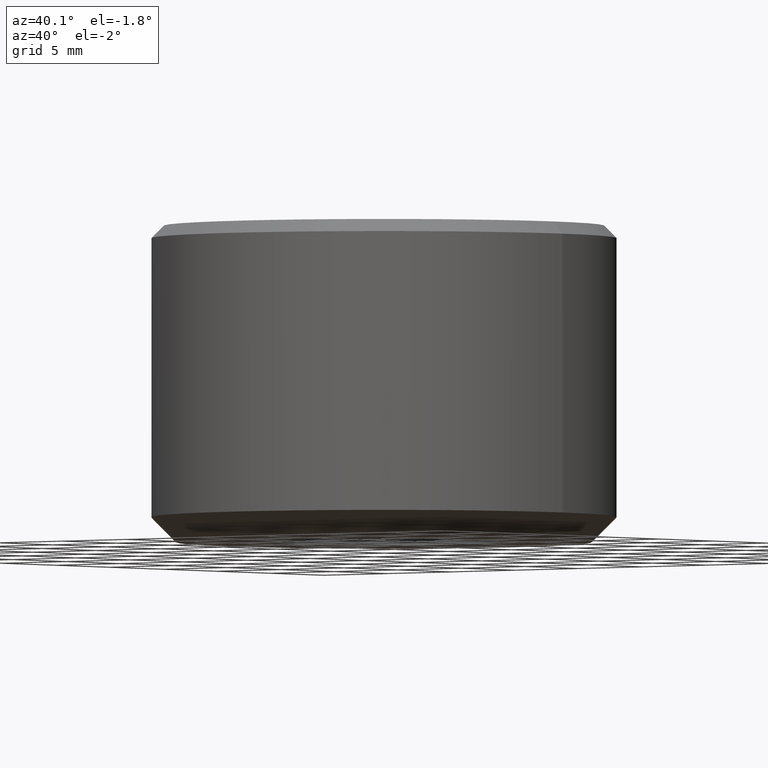
[diagram: clean part render]
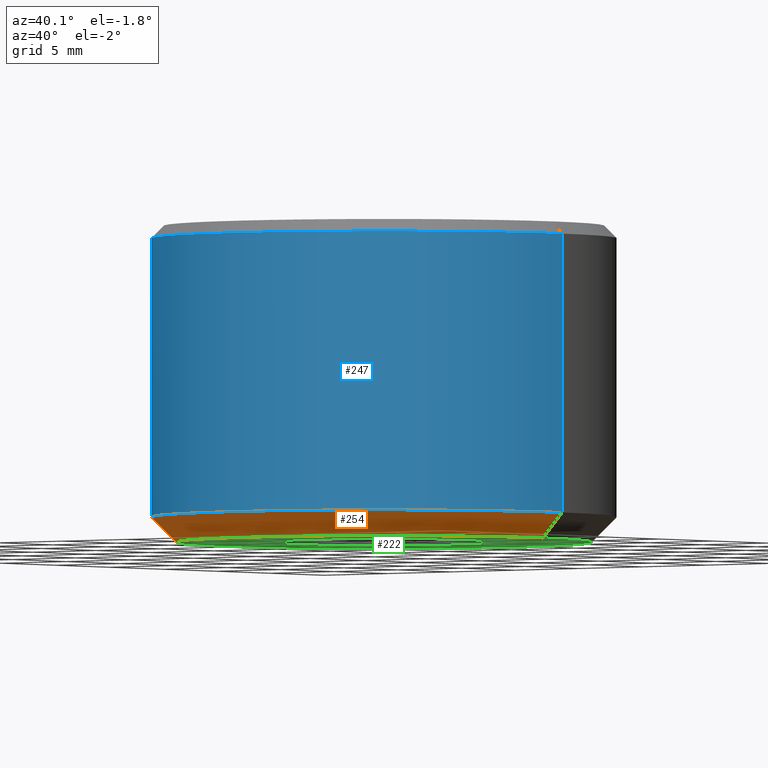
[diagram: same view with three faces highlighted in distinct colors, each labeled with its STEP entity id]
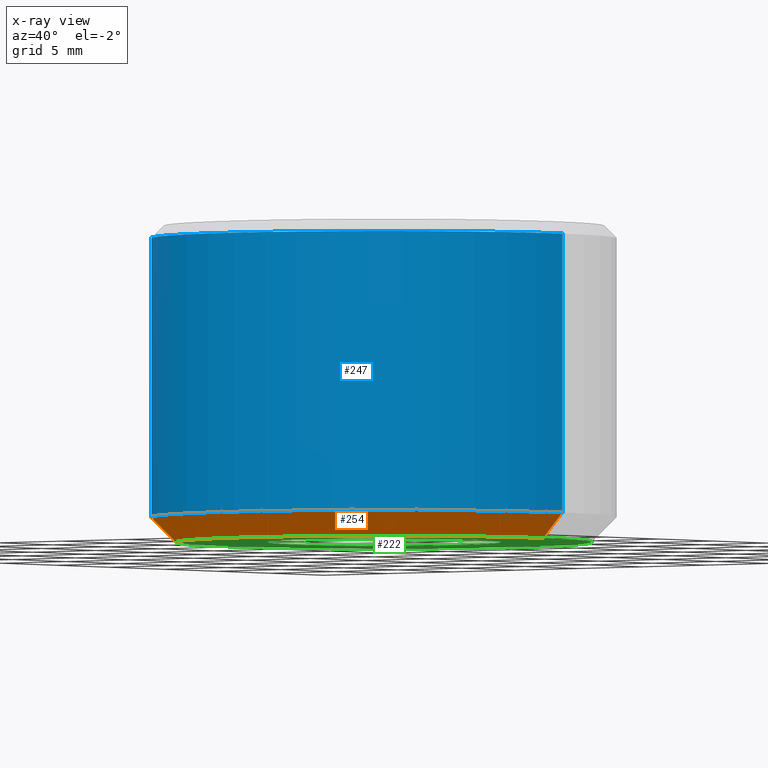
[diagram: x-ray of the same camera — body ghosted, the three highlighted faces saturated]
A machine part, auxiliary view with three faces highlighted in distinct colors.
The next image is the same camera in x-ray (body ghosted, the three faces saturated) — at least one of them is partly hidden behind the body in this view.
Their STEP definitions:

[orange] entity #254 — the highlighted conical surface has half-angle 45 deg.
#5 = VECTOR ( 'NONE', #94, 1000.000000000000000 ) ;
#10 = CARTESIAN_POINT ( 'NONE',  ( -12.49999999999984400, 1.622657008870240900E-015, 2.220446049250313100E-013 ) ) ;
#26 = CARTESIAN_POINT ( 'NONE',  ( 12.49999999999984400, 0.0000000000000000000, 2.220446049250313100E-013 ) ) ;
#41 = CARTESIAN_POINT ( 'NONE',  ( 14.00000000000012400, 0.0000000000000000000, 1.500000000000500700 ) ) ;
#62 = DIRECTION ( 'NONE',  ( 1.000000000000000000, 0.0000000000000000000, 0.0000000000000000000 ) ) ;
#69 = CIRCLE ( 'NONE', #231, 12.49999999999984400 ) ;
#83 = VERTEX_POINT ( 'NONE', #10 ) ;
#84 = DIRECTION ( 'NONE',  ( 1.000000000000000000, 0.0000000000000000000, 0.0000000000000000000 ) ) ;
#94 = DIRECTION ( 'NONE',  ( -0.7071067811865474600, 8.659560562354931600E-017, 0.7071067811865475700 ) ) ;
#97 = LINE ( 'NONE', #26, #230 ) ;
#109 = CARTESIAN_POINT ( 'NONE',  ( 0.0000000000000000000, 0.0000000000000000000, 2.220446049250313100E-013 ) ) ;
#132 = ORIENTED_EDGE ( 'NONE', *, *, #319, .F. ) ;
#149 = CARTESIAN_POINT ( 'NONE',  ( -12.49999999999984400, 1.530808498934172600E-015, 2.220446049250313100E-013 ) ) ;
#151 = EDGE_LOOP ( 'NONE', ( #132, #285, #238, #271 ) ) ;
#169 = VERTEX_POINT ( 'NONE', #41 ) ;
#181 = LINE ( 'NONE', #149, #5 ) ;
#188 = CARTESIAN_POINT ( 'NONE',  ( 0.0000000000000000000, 0.0000000000000000000, 1.500000000000500900 ) ) ;
#189 = CARTESIAN_POINT ( 'NONE',  ( 12.49999999999984400, 0.0000000000000000000, 2.220446049250313100E-013 ) ) ;
#207 = CIRCLE ( 'NONE', #280, 14.00000000000012400 ) ;
#213 = DIRECTION ( 'NONE',  ( -0.0000000000000000000, -0.0000000000000000000, 1.000000000000000000 ) ) ;
#230 = VECTOR ( 'NONE', #325, 1000.000000000000000 ) ;
#231 = AXIS2_PLACEMENT_3D ( 'NONE', #248, #277, #339 ) ;
#238 = ORIENTED_EDGE ( 'NONE', *, *, #304, .T. ) ;
#248 = CARTESIAN_POINT ( 'NONE',  ( 0.0000000000000000000, 0.0000000000000000000, 2.220446049250313100E-013 ) ) ;
#251 = VERTEX_POINT ( 'NONE', #189 ) ;
#254 = ADVANCED_FACE ( 'NONE', ( #335 ), #255, .T. ) ;
#255 = CONICAL_SURFACE ( 'NONE', #266, 12.49999999999984400, 0.7853981633974482800 ) ;
#258 = EDGE_CURVE ( 'NONE', #265, #169, #207, .T. ) ;
#265 = VERTEX_POINT ( 'NONE', #278 ) ;
#266 = AXIS2_PLACEMENT_3D ( 'NONE', #109, #213, #62 ) ;
#271 = ORIENTED_EDGE ( 'NONE', *, *, #258, .F. ) ;
#277 = DIRECTION ( 'NONE',  ( -0.0000000000000000000, -0.0000000000000000000, 1.000000000000000000 ) ) ;
#278 = CARTESIAN_POINT ( 'NONE',  ( -14.00000000000012400, 1.714505518806309600E-015, 1.500000000000500700 ) ) ;
#280 = AXIS2_PLACEMENT_3D ( 'NONE', #188, #336, #84 ) ;
#285 = ORIENTED_EDGE ( 'NONE', *, *, #323, .T. ) ;
#304 = EDGE_CURVE ( 'NONE', #251, #169, #97, .T. ) ;
#319 = EDGE_CURVE ( 'NONE', #83, #265, #181, .T. ) ;
#323 = EDGE_CURVE ( 'NONE', #83, #251, #69, .T. ) ;
#325 = DIRECTION ( 'NONE',  ( 0.7071067811865474600, 0.0000000000000000000, 0.7071067811865475700 ) ) ;
#335 = FACE_OUTER_BOUND ( 'NONE', #151, .T. ) ;
#336 = DIRECTION ( 'NONE',  ( -0.0000000000000000000, -0.0000000000000000000, 1.000000000000000000 ) ) ;
#339 = DIRECTION ( 'NONE',  ( 1.000000000000000000, 0.0000000000000000000, 0.0000000000000000000 ) ) ;

[blue] entity #247 — the highlighted cylindrical surface (partial cylindrical patch) has radius 14 mm, axis along (-0, -0, 1).
#4 = EDGE_CURVE ( 'NONE', #203, #327, #95, .T. ) ;
#41 = CARTESIAN_POINT ( 'NONE',  ( 14.00000000000012400, 0.0000000000000000000, 1.500000000000500700 ) ) ;
#42 = LINE ( 'NONE', #234, #292 ) ;
#45 = AXIS2_PLACEMENT_3D ( 'NONE', #58, #128, #155 ) ;
#58 = CARTESIAN_POINT ( 'NONE',  ( 0.0000000000000000000, 0.0000000000000000000, 18.25000000000032000 ) ) ;
#60 = EDGE_CURVE ( 'NONE', #169, #327, #42, .T. ) ;
#64 = DIRECTION ( 'NONE',  ( -0.0000000000000000000, -0.0000000000000000000, 1.000000000000000000 ) ) ;
#65 = CARTESIAN_POINT ( 'NONE',  ( -14.00000000000012400, 1.714505518806309600E-015, 18.25000000000032000 ) ) ;
#66 = CARTESIAN_POINT ( 'NONE',  ( 14.00000000000012400, 0.0000000000000000000, 18.25000000000032000 ) ) ;
#80 = AXIS2_PLACEMENT_3D ( 'NONE', #311, #138, #86 ) ;
#84 = DIRECTION ( 'NONE',  ( 1.000000000000000000, 0.0000000000000000000, 0.0000000000000000000 ) ) ;
#86 = DIRECTION ( 'NONE',  ( 1.000000000000000000, 0.0000000000000000000, 0.0000000000000000000 ) ) ;
#95 = CIRCLE ( 'NONE', #45, 14.00000000000012400 ) ;
#123 = ORIENTED_EDGE ( 'NONE', *, *, #60, .T. ) ;
#125 = FACE_OUTER_BOUND ( 'NONE', #157, .T. ) ;
#128 = DIRECTION ( 'NONE',  ( -0.0000000000000000000, -0.0000000000000000000, 1.000000000000000000 ) ) ;
#131 = DIRECTION ( 'NONE',  ( -0.0000000000000000000, -0.0000000000000000000, 1.000000000000000000 ) ) ;
#135 = CARTESIAN_POINT ( 'NONE',  ( -14.00000000000012400, 1.714505518806309600E-015, 75.10608502361769500 ) ) ;
#138 = DIRECTION ( 'NONE',  ( -0.0000000000000000000, -0.0000000000000000000, 1.000000000000000000 ) ) ;
#145 = VECTOR ( 'NONE', #64, 1000.000000000000000 ) ;
#148 = EDGE_CURVE ( 'NONE', #265, #203, #270, .T. ) ;
#155 = DIRECTION ( 'NONE',  ( 1.000000000000000000, 0.0000000000000000000, 0.0000000000000000000 ) ) ;
#157 = EDGE_LOOP ( 'NONE', ( #182, #337, #123, #223 ) ) ;
#169 = VERTEX_POINT ( 'NONE', #41 ) ;
#182 = ORIENTED_EDGE ( 'NONE', *, *, #148, .F. ) ;
#188 = CARTESIAN_POINT ( 'NONE',  ( 0.0000000000000000000, 0.0000000000000000000, 1.500000000000500900 ) ) ;
#203 = VERTEX_POINT ( 'NONE', #65 ) ;
#207 = CIRCLE ( 'NONE', #280, 14.00000000000012400 ) ;
#221 = CYLINDRICAL_SURFACE ( 'NONE', #80, 14.00000000000012400 ) ;
#223 = ORIENTED_EDGE ( 'NONE', *, *, #4, .F. ) ;
#234 = CARTESIAN_POINT ( 'NONE',  ( 14.00000000000012400, 0.0000000000000000000, 75.10608502361769500 ) ) ;
#247 = ADVANCED_FACE ( 'NONE', ( #125 ), #221, .T. ) ;
#258 = EDGE_CURVE ( 'NONE', #265, #169, #207, .T. ) ;
#265 = VERTEX_POINT ( 'NONE', #278 ) ;
#270 = LINE ( 'NONE', #135, #145 ) ;
#278 = CARTESIAN_POINT ( 'NONE',  ( -14.00000000000012400, 1.714505518806309600E-015, 1.500000000000500700 ) ) ;
#280 = AXIS2_PLACEMENT_3D ( 'NONE', #188, #336, #84 ) ;
#292 = VECTOR ( 'NONE', #131, 1000.000000000000000 ) ;
#311 = CARTESIAN_POINT ( 'NONE',  ( 0.0000000000000000000, 0.0000000000000000000, 75.10608502361769500 ) ) ;
#327 = VERTEX_POINT ( 'NONE', #66 ) ;
#336 = DIRECTION ( 'NONE',  ( -0.0000000000000000000, -0.0000000000000000000, 1.000000000000000000 ) ) ;
#337 = ORIENTED_EDGE ( 'NONE', *, *, #258, .T. ) ;

[green] entity #222 — the highlighted planar face has unit normal (0, -0, 1).
#2 = CIRCLE ( 'NONE', #233, 7.000000000000000000 ) ;
#6 = AXIS2_PLACEMENT_3D ( 'NONE', #210, #334, #61 ) ;
#10 = CARTESIAN_POINT ( 'NONE',  ( -12.49999999999984400, 1.622657008870240900E-015, 2.220446049250313100E-013 ) ) ;
#12 = EDGE_LOOP ( 'NONE', ( #344, #71 ) ) ;
#28 = EDGE_CURVE ( 'NONE', #256, #136, #154, .T. ) ;
#30 = AXIS2_PLACEMENT_3D ( 'NONE', #208, #185, #274 ) ;
#44 = ORIENTED_EDGE ( 'NONE', *, *, #224, .T. ) ;
#54 = ORIENTED_EDGE ( 'NONE', *, *, #28, .T. ) ;
#61 = DIRECTION ( 'NONE',  ( 1.000000000000000000, 0.0000000000000000000, 0.0000000000000000000 ) ) ;
#67 = DIRECTION ( 'NONE',  ( 1.000000000000000000, 0.0000000000000000000, 0.0000000000000000000 ) ) ;
#69 = CIRCLE ( 'NONE', #231, 12.49999999999984400 ) ;
#71 = ORIENTED_EDGE ( 'NONE', *, *, #323, .F. ) ;
#82 = CARTESIAN_POINT ( 'NONE',  ( -7.000000000000000900, 8.572527594031474200E-016, 2.220446049250313100E-013 ) ) ;
#83 = VERTEX_POINT ( 'NONE', #10 ) ;
#90 = EDGE_CURVE ( 'NONE', #251, #83, #168, .T. ) ;
#122 = FACE_BOUND ( 'NONE', #318, .T. ) ;
#136 = VERTEX_POINT ( 'NONE', #82 ) ;
#141 = FACE_OUTER_BOUND ( 'NONE', #12, .T. ) ;
#154 = CIRCLE ( 'NONE', #30, 7.000000000000000000 ) ;
#163 = DIRECTION ( 'NONE',  ( 0.0000000000000000000, -0.0000000000000000000, 1.000000000000000000 ) ) ;
#167 = CARTESIAN_POINT ( 'NONE',  ( 0.0000000000000000000, 0.0000000000000000000, 2.220446049250313100E-013 ) ) ;
#168 = CIRCLE ( 'NONE', #6, 12.49999999999984400 ) ;
#185 = DIRECTION ( 'NONE',  ( -0.0000000000000000000, -0.0000000000000000000, 1.000000000000000000 ) ) ;
#189 = CARTESIAN_POINT ( 'NONE',  ( 12.49999999999984400, 0.0000000000000000000, 2.220446049250313100E-013 ) ) ;
#208 = CARTESIAN_POINT ( 'NONE',  ( 0.0000000000000000000, 0.0000000000000000000, 2.220446049250313100E-013 ) ) ;
#210 = CARTESIAN_POINT ( 'NONE',  ( 0.0000000000000000000, 0.0000000000000000000, 2.220446049250313100E-013 ) ) ;
#215 = CARTESIAN_POINT ( 'NONE',  ( 7.000000000000000000, 0.0000000000000000000, 2.220446049250313100E-013 ) ) ;
#222 = ADVANCED_FACE ( 'NONE', ( #141, #122 ), #338, .F. ) ;
#224 = EDGE_CURVE ( 'NONE', #136, #256, #2, .T. ) ;
#231 = AXIS2_PLACEMENT_3D ( 'NONE', #248, #277, #339 ) ;
#233 = AXIS2_PLACEMENT_3D ( 'NONE', #167, #309, #306 ) ;
#236 = AXIS2_PLACEMENT_3D ( 'NONE', #313, #163, #67 ) ;
#248 = CARTESIAN_POINT ( 'NONE',  ( 0.0000000000000000000, 0.0000000000000000000, 2.220446049250313100E-013 ) ) ;
#251 = VERTEX_POINT ( 'NONE', #189 ) ;
#256 = VERTEX_POINT ( 'NONE', #215 ) ;
#274 = DIRECTION ( 'NONE',  ( 1.000000000000000000, 0.0000000000000000000, 0.0000000000000000000 ) ) ;
#277 = DIRECTION ( 'NONE',  ( -0.0000000000000000000, -0.0000000000000000000, 1.000000000000000000 ) ) ;
#306 = DIRECTION ( 'NONE',  ( 1.000000000000000000, 0.0000000000000000000, 0.0000000000000000000 ) ) ;
#309 = DIRECTION ( 'NONE',  ( -0.0000000000000000000, -0.0000000000000000000, 1.000000000000000000 ) ) ;
#313 = CARTESIAN_POINT ( 'NONE',  ( 0.0000000000000000000, 12.49999999999984400, 2.220446049250313100E-013 ) ) ;
#318 = EDGE_LOOP ( 'NONE', ( #54, #44 ) ) ;
#323 = EDGE_CURVE ( 'NONE', #83, #251, #69, .T. ) ;
#334 = DIRECTION ( 'NONE',  ( -0.0000000000000000000, -0.0000000000000000000, 1.000000000000000000 ) ) ;
#338 = PLANE ( 'NONE',  #236 ) ;
#339 = DIRECTION ( 'NONE',  ( 1.000000000000000000, 0.0000000000000000000, 0.0000000000000000000 ) ) ;
#344 = ORIENTED_EDGE ( 'NONE', *, *, #90, .F. ) ;